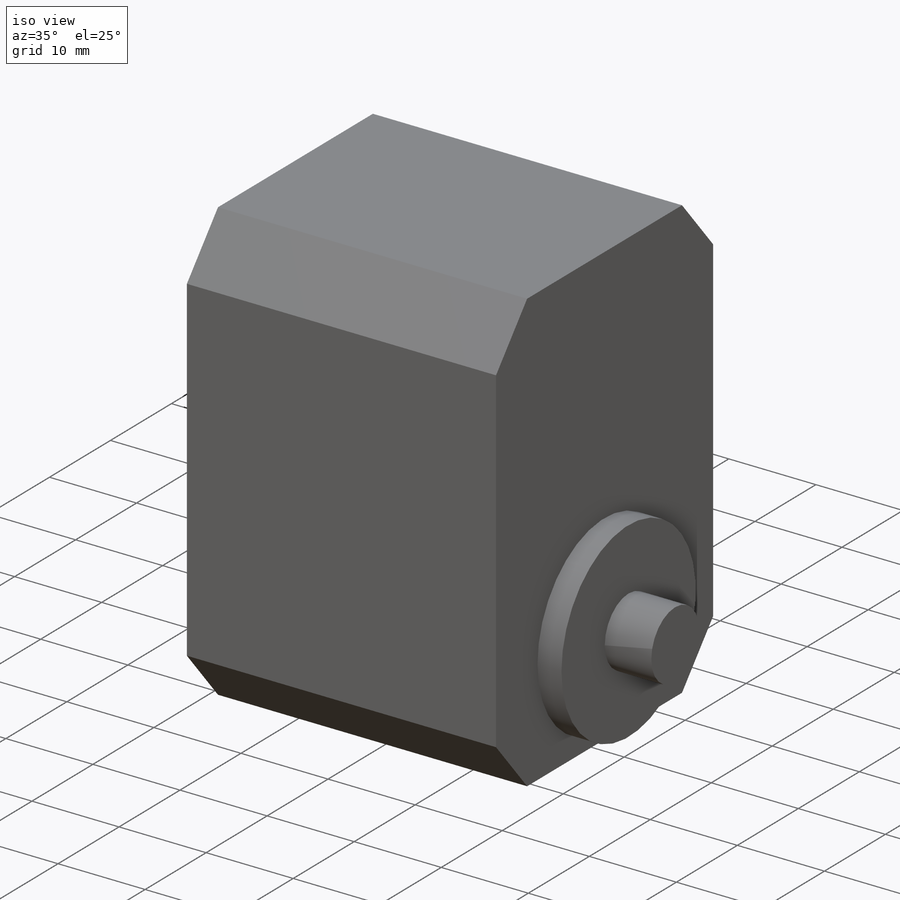
[diagram: iso view]
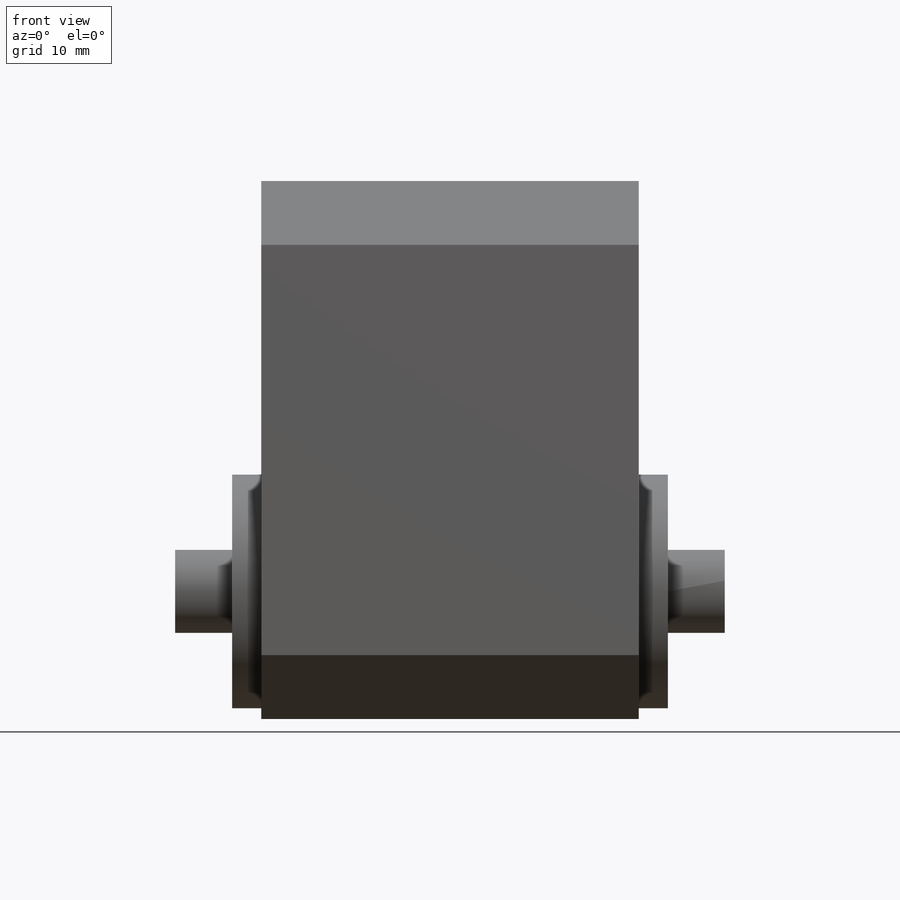
[diagram: front view]
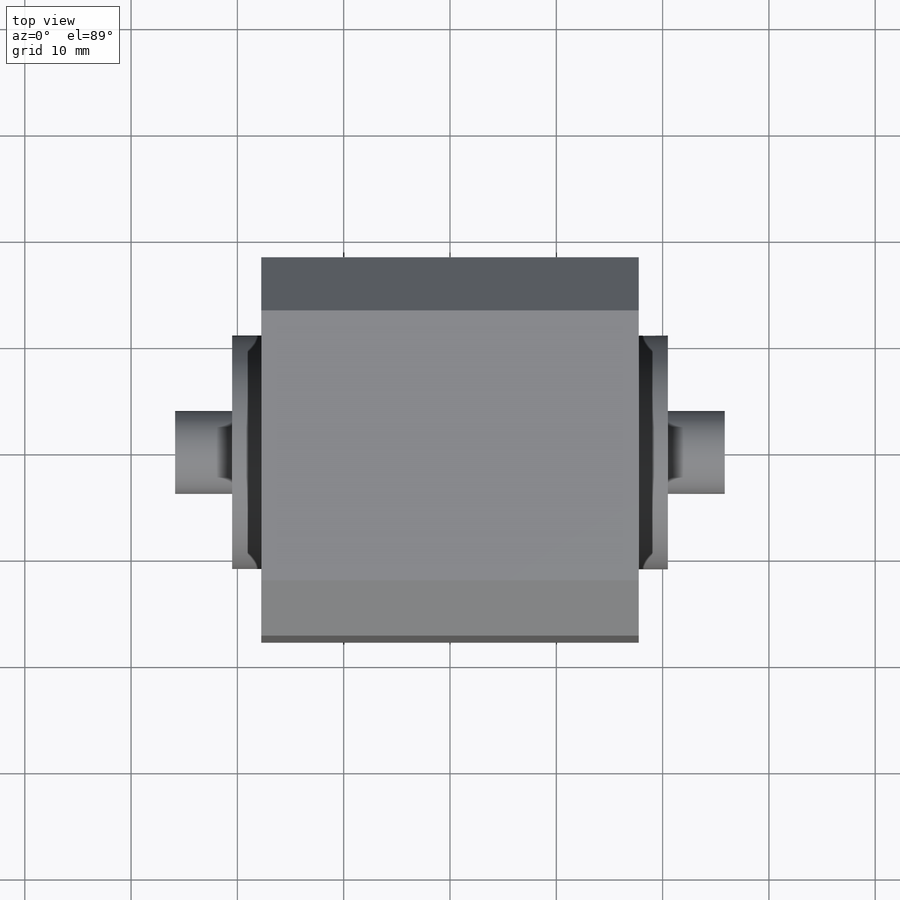
[diagram: top view]
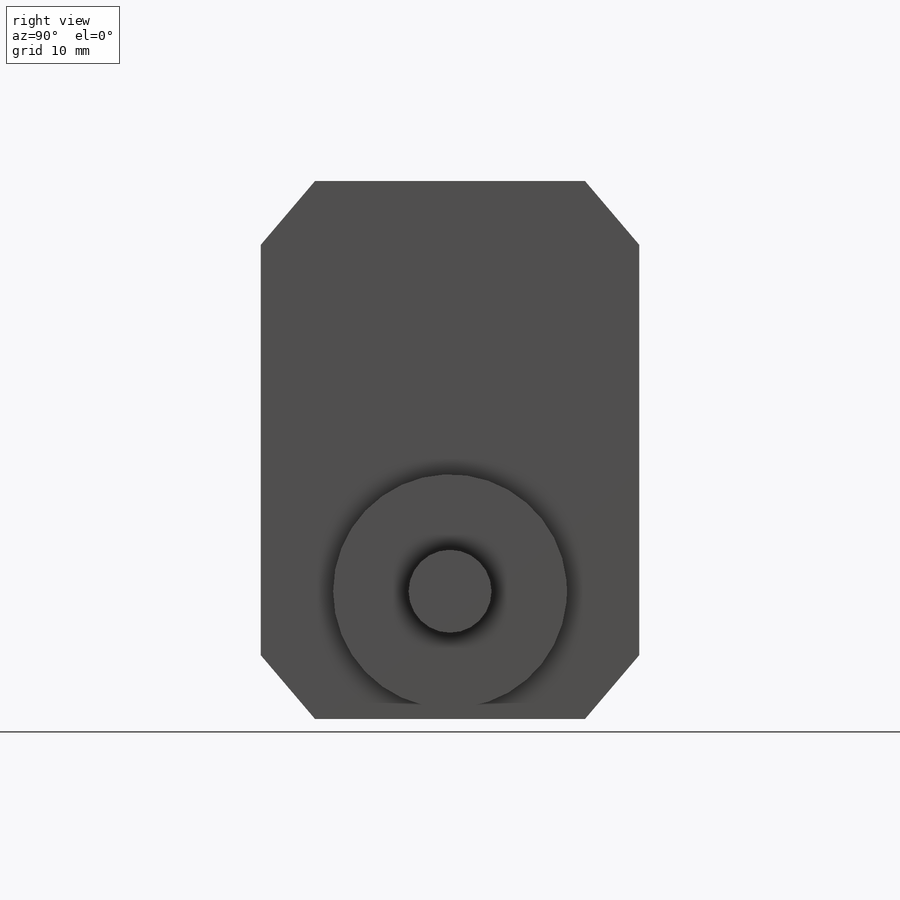
[diagram: right view]
SOLIDWORKS PART (.sldprt)
format: sldprt  version: not decoded by parser v0  size: 178,688 bytes
history: native  units: mm
features: sketch x3, extrude x3, plane x2, material x1, mirror x1 (+11 scaffold rows collapsed)
feature tree (21):
  scaffold x11  (default folders/planes/origin — collapsed)
  material  "Material <not specified>"
  plane  "Plane1"  Offset=12mm
  sketch  "Sketch2"  dims[D1=13.7mm D2=35.6mm D3=35.5mm]
  extrude  "Boss-Extrude1"  Depth=50.6mm
  sketch  "Sketch3"  dims[D2=22.0mm D1=12.0mm]
  extrude  "Boss-Extrude2"  Depth=2.75mm
  sketch  "Sketch4"  dims[D1=7.8mm]
  extrude  "Boss-Extrude3"  Depth=5.35mm
  plane  "Plane2"
  mirror  "Mirror1"
decode coverage: 6 of 7 modeling features carry decoded parameters
note: suppression state not decoded; provenance and decode notes live in map.json
